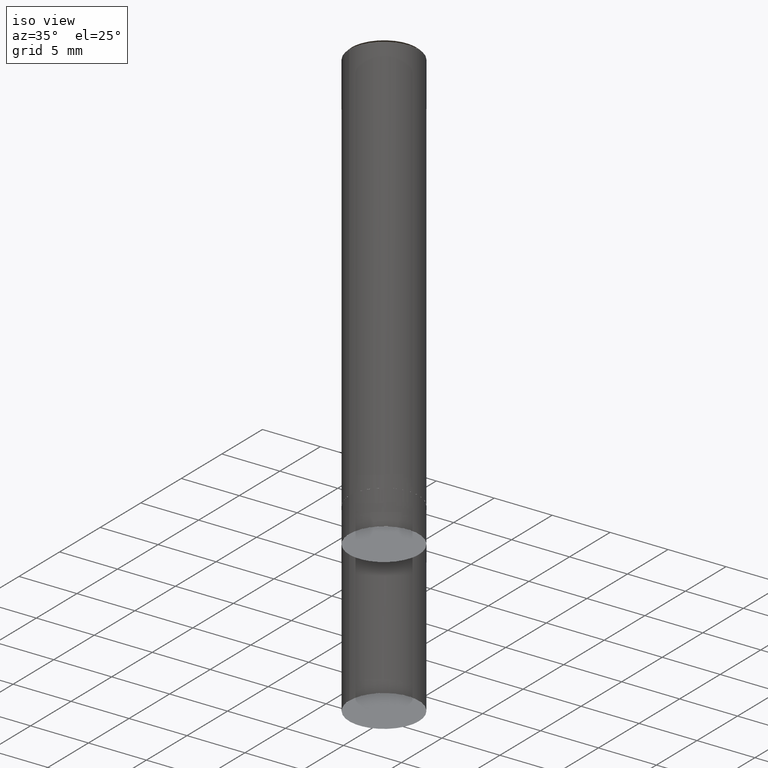
[diagram: clean part render]
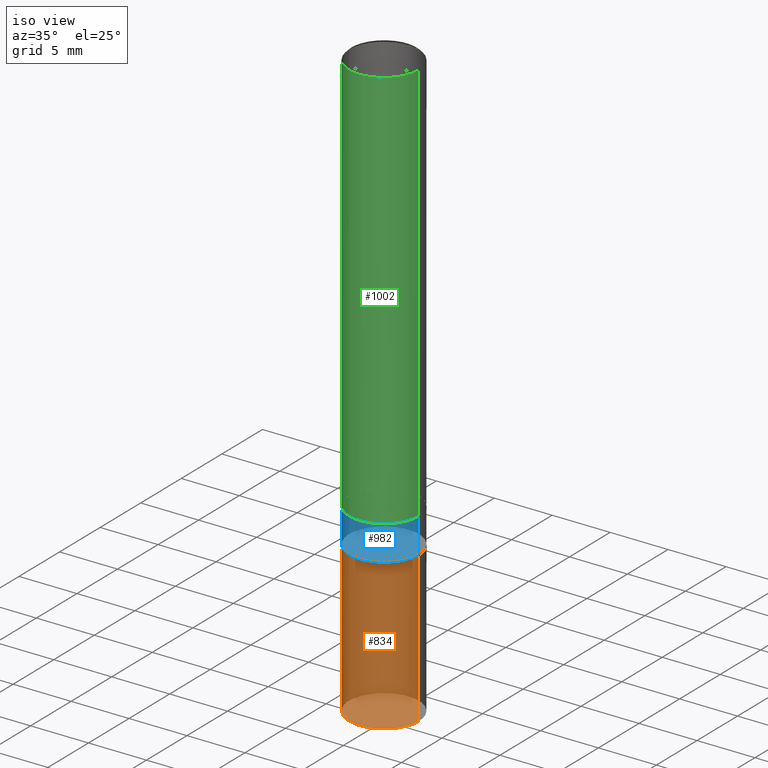
[diagram: same view with three faces highlighted in distinct colors, each labeled with its STEP entity id]
A machine part, iso view with three faces highlighted in distinct colors.
Their STEP definitions:

[orange] entity #834 — the highlighted face is a freeform B-spline surface patch.
#109=CARTESIAN_POINT('',(0.0,-3.0,-16.0));
#700=CARTESIAN_POINT('',(3.0,0.0,-16.0));
#704=CARTESIAN_POINT('',(-3.0,0.0,-16.0));
#705=CARTESIAN_POINT('',(3.0,0.0,-3.0));
#709=CARTESIAN_POINT('',(-3.0,0.0,-3.0));
#711=CARTESIAN_POINT('',(-3.0,-3.0,-16.0));
#712=CARTESIAN_POINT('',(3.0,-3.0,-16.0));
#713=CARTESIAN_POINT('',(-3.0,-3.0,-3.0));
#714=CARTESIAN_POINT('',(0.0,-3.0,-3.0));
#715=CARTESIAN_POINT('',(3.0,-3.0,-3.0));
#815=(
BOUNDED_SURFACE()
B_SPLINE_SURFACE(1,2,(
(#704,#711,#109,#712,#700),
(#709,#713,#714,#715,#705)
), .UNSPECIFIED.,.F.,.F.,.F.)
B_SPLINE_SURFACE_WITH_KNOTS((2,2),(3,2,3),(
0.0,1.0),(
0.0,0.5,1.0), .UNSPECIFIED.)
GEOMETRIC_REPRESENTATION_ITEM()
RATIONAL_B_SPLINE_SURFACE(((1.0,0.707106781187,1.0,0.707106781187,1.0),
(1.0,0.707106781187,1.0,0.707106781187,1.0)
))
REPRESENTATION_ITEM('')
SURFACE()
);
#816=(
BOUNDED_CURVE()
B_SPLINE_CURVE(2,(#700,#712,#109,#711,#704),.UNSPECIFIED.,.F.,.F.)
B_SPLINE_CURVE_WITH_KNOTS((3,2,3),
(0.0,0.5,1.0),.UNSPECIFIED.)
CURVE()
GEOMETRIC_REPRESENTATION_ITEM()
RATIONAL_B_SPLINE_CURVE((1.0,0.707106781187,1.0,0.707106781187,1.0))
REPRESENTATION_ITEM('')
);
#817=(
BOUNDED_CURVE()
B_SPLINE_CURVE(1,(#704,#709),.UNSPECIFIED.,.F.,.F.)
B_SPLINE_CURVE_WITH_KNOTS((2,2),
(0.0,1.0),.UNSPECIFIED.)
CURVE()
GEOMETRIC_REPRESENTATION_ITEM()
RATIONAL_B_SPLINE_CURVE((1.0,1.0))
REPRESENTATION_ITEM('')
);
#818=(
BOUNDED_CURVE()
B_SPLINE_CURVE(2,(#709,#713,#714,#715,#705),.UNSPECIFIED.,.F.,.F.)
B_SPLINE_CURVE_WITH_KNOTS((3,2,3),
(0.0,0.5,1.0),.UNSPECIFIED.)
CURVE()
GEOMETRIC_REPRESENTATION_ITEM()
RATIONAL_B_SPLINE_CURVE((1.0,0.707106781187,1.0,0.707106781187,1.0))
REPRESENTATION_ITEM('')
);
#819=(
BOUNDED_CURVE()
B_SPLINE_CURVE(1,(#705,#700),.UNSPECIFIED.,.F.,.F.)
B_SPLINE_CURVE_WITH_KNOTS((2,2),
(0.0,1.0),.UNSPECIFIED.)
CURVE()
GEOMETRIC_REPRESENTATION_ITEM()
RATIONAL_B_SPLINE_CURVE((1.0,1.0))
REPRESENTATION_ITEM('')
);
#820=VERTEX_POINT('',#700);
#821=VERTEX_POINT('',#704);
#822=VERTEX_POINT('',#705);
#823=VERTEX_POINT('',#709);
#824=EDGE_CURVE('',#820,#821,#816,.T.);
#825=EDGE_CURVE('',#821,#823,#817,.T.);
#826=EDGE_CURVE('',#823,#822,#818,.T.);
#827=EDGE_CURVE('',#822,#820,#819,.T.);
#828=ORIENTED_EDGE('',*,*,#824,.T.);
#829=ORIENTED_EDGE('',*,*,#825,.T.);
#830=ORIENTED_EDGE('',*,*,#826,.T.);
#831=ORIENTED_EDGE('',*,*,#827,.T.);
#832=EDGE_LOOP('',(#828,#829,#830,#831));
#833=FACE_OUTER_BOUND('',#832,.T.);
#834=ADVANCED_FACE('',(#833),#815,.T.);

[blue] entity #982 — the highlighted face is a freeform B-spline surface patch.
#705=CARTESIAN_POINT('',(3.0,0.0,-3.0));
#709=CARTESIAN_POINT('',(-3.0,0.0,-3.0));
#713=CARTESIAN_POINT('',(-3.0,-3.0,-3.0));
#714=CARTESIAN_POINT('',(0.0,-3.0,-3.0));
#715=CARTESIAN_POINT('',(3.0,-3.0,-3.0));
#716=CARTESIAN_POINT('',(3.0,0.0,0.0));
#720=CARTESIAN_POINT('',(-3.0,0.0,0.0));
#732=CARTESIAN_POINT('',(-3.0,-3.0,0.0));
#733=CARTESIAN_POINT('',(0.0,-3.0,0.0));
#734=CARTESIAN_POINT('',(3.0,-3.0,0.0));
#963=(
BOUNDED_SURFACE()
B_SPLINE_SURFACE(1,2,(
(#709,#713,#714,#715,#705),
(#720,#732,#733,#734,#716)
), .UNSPECIFIED.,.F.,.F.,.F.)
B_SPLINE_SURFACE_WITH_KNOTS((2,2),(3,2,3),(
0.0,1.0),(
0.0,0.5,1.0), .UNSPECIFIED.)
GEOMETRIC_REPRESENTATION_ITEM()
RATIONAL_B_SPLINE_SURFACE(((1.0,0.707106781187,1.0,0.707106781187,1.0),
(1.0,0.707106781187,1.0,0.707106781187,1.0)
))
REPRESENTATION_ITEM('')
SURFACE()
);
#964=(
BOUNDED_CURVE()
B_SPLINE_CURVE(2,(#705,#715,#714,#713,#709),.UNSPECIFIED.,.F.,.F.)
B_SPLINE_CURVE_WITH_KNOTS((3,2,3),
(0.0,0.5,1.0),.UNSPECIFIED.)
CURVE()
GEOMETRIC_REPRESENTATION_ITEM()
RATIONAL_B_SPLINE_CURVE((1.0,0.707106781187,1.0,0.707106781187,1.0))
REPRESENTATION_ITEM('')
);
#965=(
BOUNDED_CURVE()
B_SPLINE_CURVE(1,(#709,#720),.UNSPECIFIED.,.F.,.F.)
B_SPLINE_CURVE_WITH_KNOTS((2,2),
(0.0,1.0),.UNSPECIFIED.)
CURVE()
GEOMETRIC_REPRESENTATION_ITEM()
RATIONAL_B_SPLINE_CURVE((1.0,1.0))
REPRESENTATION_ITEM('')
);
#966=(
BOUNDED_CURVE()
B_SPLINE_CURVE(2,(#720,#732,#733,#734,#716),.UNSPECIFIED.,.F.,.F.)
B_SPLINE_CURVE_WITH_KNOTS((3,2,3),
(0.0,0.5,1.0),.UNSPECIFIED.)
CURVE()
GEOMETRIC_REPRESENTATION_ITEM()
RATIONAL_B_SPLINE_CURVE((1.0,0.707106781187,1.0,0.707106781187,1.0))
REPRESENTATION_ITEM('')
);
#967=(
BOUNDED_CURVE()
B_SPLINE_CURVE(1,(#716,#705),.UNSPECIFIED.,.F.,.F.)
B_SPLINE_CURVE_WITH_KNOTS((2,2),
(0.0,1.0),.UNSPECIFIED.)
CURVE()
GEOMETRIC_REPRESENTATION_ITEM()
RATIONAL_B_SPLINE_CURVE((1.0,1.0))
REPRESENTATION_ITEM('')
);
#968=VERTEX_POINT('',#705);
#969=VERTEX_POINT('',#709);
#970=VERTEX_POINT('',#716);
#971=VERTEX_POINT('',#720);
#972=EDGE_CURVE('',#968,#969,#964,.T.);
#973=EDGE_CURVE('',#969,#971,#965,.T.);
#974=EDGE_CURVE('',#971,#970,#966,.T.);
#975=EDGE_CURVE('',#970,#968,#967,.T.);
#976=ORIENTED_EDGE('',*,*,#972,.T.);
#977=ORIENTED_EDGE('',*,*,#973,.T.);
#978=ORIENTED_EDGE('',*,*,#974,.T.);
#979=ORIENTED_EDGE('',*,*,#975,.T.);
#980=EDGE_LOOP('',(#976,#977,#978,#979));
#981=FACE_OUTER_BOUND('',#980,.T.);
#982=ADVANCED_FACE('',(#981),#963,.T.);

[green] entity #1002 — the highlighted face is a freeform B-spline surface patch.
#716=CARTESIAN_POINT('',(3.0,0.0,0.0));
#720=CARTESIAN_POINT('',(-3.0,0.0,0.0));
#721=CARTESIAN_POINT('',(3.0,0.0,34.8));
#725=CARTESIAN_POINT('',(-3.0,0.0,34.8));
#732=CARTESIAN_POINT('',(-3.0,-3.0,0.0));
#733=CARTESIAN_POINT('',(0.0,-3.0,0.0));
#734=CARTESIAN_POINT('',(3.0,-3.0,0.0));
#735=CARTESIAN_POINT('',(-3.0,-3.0,34.8));
#736=CARTESIAN_POINT('',(0.0,-3.0,34.8));
#737=CARTESIAN_POINT('',(3.0,-3.0,34.8));
#983=(
BOUNDED_SURFACE()
B_SPLINE_SURFACE(1,2,(
(#720,#732,#733,#734,#716),
(#725,#735,#736,#737,#721)
), .UNSPECIFIED.,.F.,.F.,.F.)
B_SPLINE_SURFACE_WITH_KNOTS((2,2),(3,2,3),(
0.0,1.0),(
0.0,0.5,1.0), .UNSPECIFIED.)
GEOMETRIC_REPRESENTATION_ITEM()
RATIONAL_B_SPLINE_SURFACE(((1.0,0.707106781187,1.0,0.707106781187,1.0),
(1.0,0.707106781187,1.0,0.707106781187,1.0)
))
REPRESENTATION_ITEM('')
SURFACE()
);
#984=(
BOUNDED_CURVE()
B_SPLINE_CURVE(2,(#716,#734,#733,#732,#720),.UNSPECIFIED.,.F.,.F.)
B_SPLINE_CURVE_WITH_KNOTS((3,2,3),
(0.0,0.5,1.0),.UNSPECIFIED.)
CURVE()
GEOMETRIC_REPRESENTATION_ITEM()
RATIONAL_B_SPLINE_CURVE((1.0,0.707106781187,1.0,0.707106781187,1.0))
REPRESENTATION_ITEM('')
);
#985=(
BOUNDED_CURVE()
B_SPLINE_CURVE(1,(#720,#725),.UNSPECIFIED.,.F.,.F.)
B_SPLINE_CURVE_WITH_KNOTS((2,2),
(0.0,1.0),.UNSPECIFIED.)
CURVE()
GEOMETRIC_REPRESENTATION_ITEM()
RATIONAL_B_SPLINE_CURVE((1.0,1.0))
REPRESENTATION_ITEM('')
);
#986=(
BOUNDED_CURVE()
B_SPLINE_CURVE(2,(#725,#735,#736,#737,#721),.UNSPECIFIED.,.F.,.F.)
B_SPLINE_CURVE_WITH_KNOTS((3,2,3),
(0.0,0.5,1.0),.UNSPECIFIED.)
CURVE()
GEOMETRIC_REPRESENTATION_ITEM()
RATIONAL_B_SPLINE_CURVE((1.0,0.707106781187,1.0,0.707106781187,1.0))
REPRESENTATION_ITEM('')
);
#987=(
BOUNDED_CURVE()
B_SPLINE_CURVE(1,(#721,#716),.UNSPECIFIED.,.F.,.F.)
B_SPLINE_CURVE_WITH_KNOTS((2,2),
(0.0,1.0),.UNSPECIFIED.)
CURVE()
GEOMETRIC_REPRESENTATION_ITEM()
RATIONAL_B_SPLINE_CURVE((1.0,1.0))
REPRESENTATION_ITEM('')
);
#988=VERTEX_POINT('',#716);
#989=VERTEX_POINT('',#720);
#990=VERTEX_POINT('',#721);
#991=VERTEX_POINT('',#725);
#992=EDGE_CURVE('',#988,#989,#984,.T.);
#993=EDGE_CURVE('',#989,#991,#985,.T.);
#994=EDGE_CURVE('',#991,#990,#986,.T.);
#995=EDGE_CURVE('',#990,#988,#987,.T.);
#996=ORIENTED_EDGE('',*,*,#992,.T.);
#997=ORIENTED_EDGE('',*,*,#993,.T.);
#998=ORIENTED_EDGE('',*,*,#994,.T.);
#999=ORIENTED_EDGE('',*,*,#995,.T.);
#1000=EDGE_LOOP('',(#996,#997,#998,#999));
#1001=FACE_OUTER_BOUND('',#1000,.T.);
#1002=ADVANCED_FACE('',(#1001),#983,.T.);